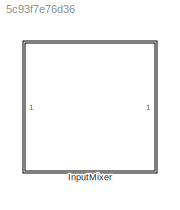
MODEL slx_5c93f7e76d36
KIND library
CONFIG AbsTol = auto
CONFIG EnableMultiTasking = off
CONFIG FixedStep = auto
CONFIG MaxStep = auto
CONFIG MinStep = auto
CONFIG RelTol = 1e-3
CONFIG SampleTimeConstraint = Unconstrained
CONFIG SolverName = VariableStepAuto
CONFIG StartTime = 0.0
CONFIG StopTime = 10.0
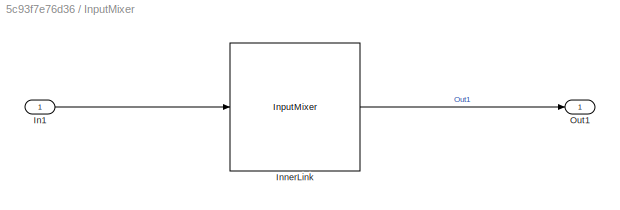
BLOCK [SubSystem] InputMixer
BLOCK [Inport] InputMixer/In1
BLOCK [Reference] InputMixer/InnerLink  REF=InputMixerBtc/InputMixer
  SourceBlock = InputMixerBtc/InputMixer
  SourceProductName = Bose Blocklib
  SourceType = Blocklib InputMixer
BLOCK [Outport] InputMixer/Out1
LINE InputMixer/In1:1 -> InputMixer/InnerLink:1
LINE InputMixer/InnerLink:1 -> InputMixer/Out1:1
